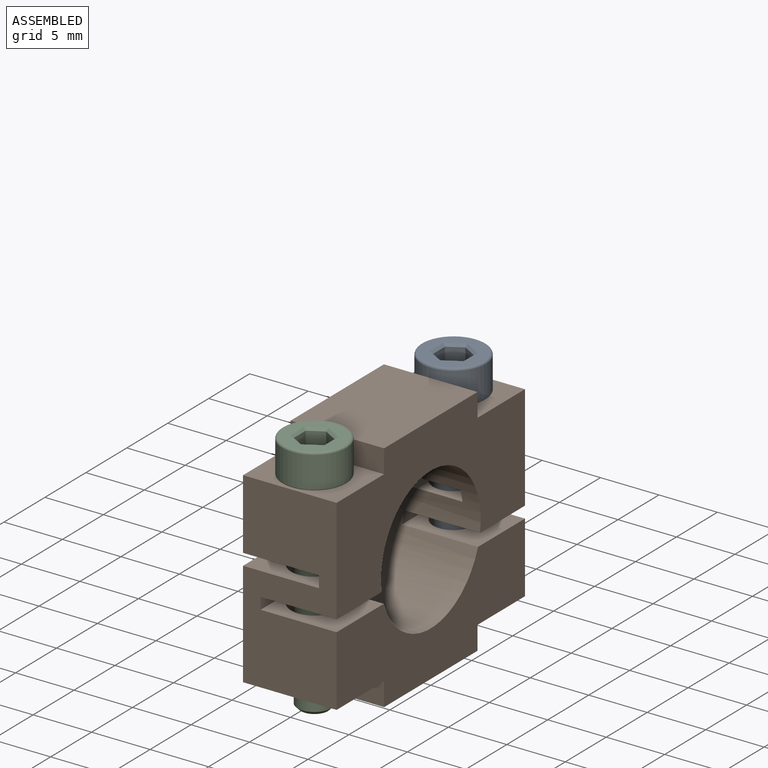
[diagram: assembled view]
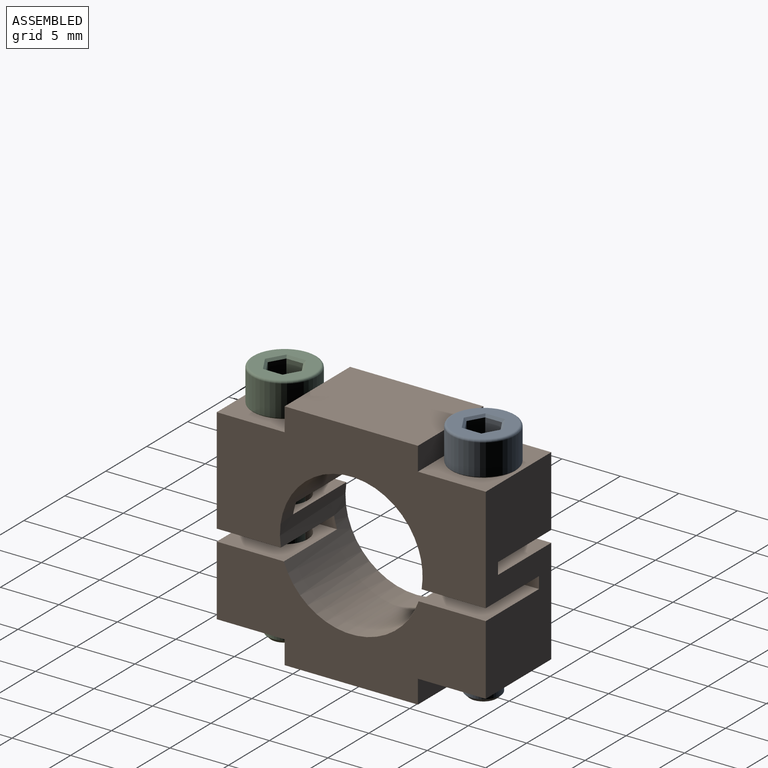
[diagram: assembled view, second angle]
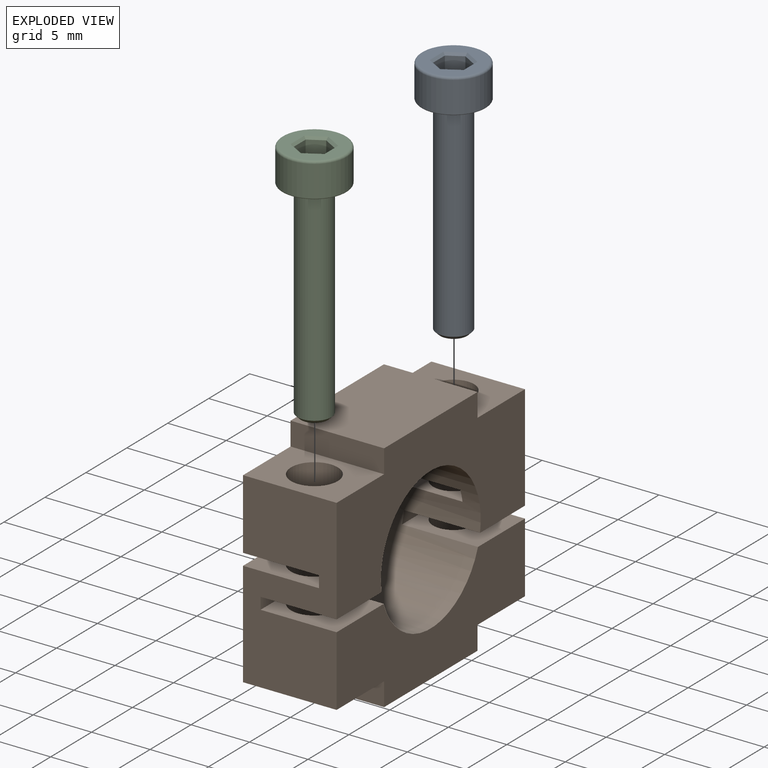
[diagram: exploded view]
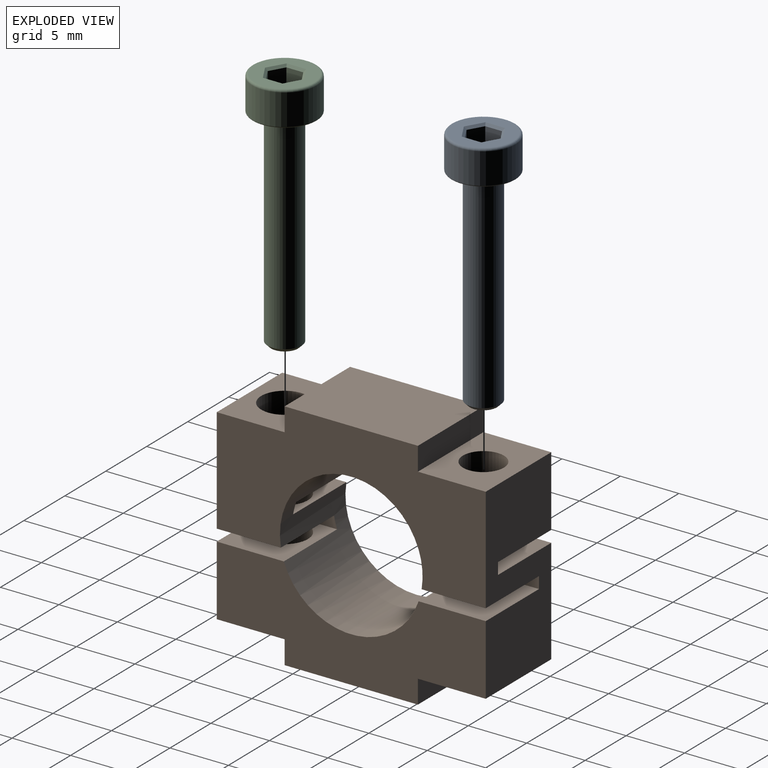
[diagram: exploded view, second angle]
ASSEMBLY  parts=3 mates=2
PART A: 23 faces, bbox 6x21x6 mm
  f0: plane 5.1x5.1mm, normal (0,1,0), area 13.1mm2, adj f10,f11,f12,f13,f14,f15,f17
  f1: cylinder r=2.75mm len=5.5mm, axis (0,-1,0), area 45.8mm2, adj f16,f17
  f2: plane 5.3x5.3mm, normal (0,-1,0), area 15mm2, adj f16,f18
  f3: plane 1.8x1.25mm, normal (0.5,0,-0.87), area 2.6mm2, adj f4,f8,f9,f15
  f4: plane 1.8x1.25mm, normal (-0.5,0,-0.87), area 2.6mm2, adj f3,f5,f9,f13
  f5: plane 1.8x1.44mm, normal (-1,0,0), area 2.6mm2, adj f4,f6,f9,f11
  f6: plane 1.8x1.25mm, normal (-0.5,0,0.87), area 2.6mm2, adj f5,f7,f9,f10
  f7: plane 1.8x1.25mm, normal (0.5,0,0.87), area 2.6mm2, adj f6,f8,f9,f12
  f8: plane 1.8x1.44mm, normal (1,0,0), area 2.6mm2, adj f3,f7,f9,f14
  f9: plane 2.89x2.5mm, normal (0,1,0), area 5.4mm2, adj f3,f4,f5,f6,f7,f8
  f10: plane 1.45x0.95mm, normal (-0.35,0.71,0.61), area 0.4mm2, adj f0,f6,f11,f12
  f11: plane 1.67x0.2mm, normal (-0.71,0.71,0), area 0.4mm2, adj f0,f5,f10,f13
  f12: plane 1.45x0.95mm, normal (0.35,0.71,0.61), area 0.4mm2, adj f0,f7,f10,f14
  f13: plane 1.45x0.95mm, normal (-0.35,0.71,-0.61), area 0.4mm2, adj f0,f4,f11,f15
  f14: plane 1.67x0.2mm, normal (0.71,0.71,0), area 0.4mm2, adj f0,f8,f12,f15
  f15: plane 1.45x0.95mm, normal (0.35,0.71,-0.61), area 0.4mm2, adj f0,f3,f13,f14
  f16: torus R=2.65mm, axis (0,-1,0), area 2.7mm2, adj f1,f2
  f17: torus R=2.55mm, axis (0,-1,0), area 5.3mm2, adj f0,f1
  f18: cylinder r=1.5mm len=3mm, axis (0,1,0), area 0.9mm2, adj f2,f19
  f19: plane 3x3mm, normal (0,-1,0), area 0.5mm2, adj f18,f22
  f20: plane 2.3x2.3mm, normal (0,-1,0), area 4.2mm2, adj f21
  f21: cone r=1.15mm half-angle=45deg, axis (0,1,0), area 3.5mm2, adj f20,f22
  f22: cylinder r=1.45mm len=17.6mm, axis (0,1,0), area 160.3mm2, adj f19,f21
PART B: 35 faces, bbox 8x23x20 mm
  f0: plane 11.4x8mm, normal (0,0,-1), area 91.2mm2, adj f4,f5,f28,f30
  f1: plane 11.4x8mm, normal (0,0,1), area 91.2mm2, adj f6,f7,f32,f34
  f2: plane 16x8mm, normal (0,-1,0), area 115mm2, adj f4,f5,f6,f7,f10,f11,f14,f15
  f3: plane 16x8mm, normal (0,1,0), area 115mm2, adj f4,f5,f6,f7,f12,f13,f17,f18
  f4: plane 23x11mm, normal (-1,0,0), area 159.2mm2, adj f0,f2,f3,f11,f12,f26,f27,f28
  f5: plane 23x8mm, normal (1,0,0), area 126.3mm2, adj f0,f2,f3,f13,f14,f26,f27,f28
  f6: plane 23x11mm, normal (1,0,0), area 159.2mm2, adj f1,f2,f3,f16,f17,f26,f31,f32
  f7: plane 23x8mm, normal (-1,0,0), area 126.3mm2, adj f1,f2,f3,f18,f19,f26,f31,f32
  f8: cylinder r=1.75mm len=6mm, axis (0,0,1), area 66mm2, adj f18,f31
  f9: cylinder r=2mm len=6mm, axis (0,0,1), area 75.2mm2, adj f14,f29
  f10: plane 5.74x1mm, normal (-1,0,0), area 5.6mm2, adj f2,f11,f19,f26
  f11: plane 6.5x5.48mm, normal (0,0,1), area 23.1mm2, adj f2,f4,f10,f23,f26
  f12: plane 6.5x5.48mm, normal (0,0,1), area 26mm2, adj f3,f4,f20,f24,f26
  f13: plane 6.5x5.74mm, normal (0,0,1), area 27.7mm2, adj f3,f5,f21,f25,f26
  f14: plane 6.5x5.74mm, normal (0,0,1), area 24.8mm2, adj f2,f5,f9,f15,f26
  f15: plane 5.74x1mm, normal (1,0,0), area 5.6mm2, adj f2,f14,f16,f26
  f16: plane 6.5x5.48mm, normal (0,0,-1), area 23.1mm2, adj f2,f6,f15,f23,f26
  f17: plane 6.5x5.48mm, normal (0,0,-1), area 26mm2, adj f3,f6,f21,f24,f26
  f18: plane 6.5x5.74mm, normal (0,0,-1), area 27.7mm2, adj f3,f7,f8,f20,f26
  f19: plane 6.5x5.74mm, normal (0,0,-1), area 24.8mm2, adj f2,f7,f10,f22,f26
  f20: plane 5.74x1mm, normal (-1,0,0), area 5.6mm2, adj f3,f12,f18,f26
  f21: plane 5.74x1mm, normal (1,0,0), area 5.6mm2, adj f3,f13,f17,f26
  f22: cylinder r=2mm len=6mm, axis (0,0,1), area 75.2mm2, adj f19,f33
  f23: cylinder r=2mm len=3.99mm, axis (0,0,1), area 25.1mm2, adj f11,f16
  f24: cylinder r=1.75mm len=3.5mm, axis (0,0,1), area 22mm2, adj f12,f17
  f25: cylinder r=1.75mm len=6mm, axis (0,0,1), area 66mm2, adj f13,f27
  f26: cylinder r=6.1mm len=12.2mm, axis (-1,0,0), area 279.8mm2, adj f4,f5,f6,f7,f10,f11,f12,f13
  f27: plane 8x5.8mm, normal (0,0,-1), area 36.8mm2, adj f3,f4,f5,f25,f28
  f28: plane 8x2mm, normal (0,1,0), area 16mm2, adj f0,f4,f5,f27
  f29: plane 8x5.8mm, normal (0,0,-1), area 33.9mm2, adj f2,f4,f5,f9,f30
  f30: plane 8x2mm, normal (0,-1,0), area 16mm2, adj f0,f4,f5,f29
  f31: plane 8x5.8mm, normal (0,0,1), area 36.8mm2, adj f3,f6,f7,f8,f32
  f32: plane 8x2mm, normal (0,1,0), area 16mm2, adj f1,f6,f7,f31
  f33: plane 8x5.8mm, normal (0,0,1), area 33.9mm2, adj f2,f6,f7,f22,f34
  f34: plane 8x2mm, normal (0,-1,0), area 16mm2, adj f1,f6,f7,f33
PART C: same geometry as A
PLACE A rot(axis=(1,0,0),90deg) t=(-52,8.5,8)mm
PLACE B t=(-4,0,0)mm
PLACE C rot(axis=(1,0,0),90deg) t=(-52,-8.5,8)mm
MATE fastened C.f1 <-> B.f9  axis (0,0,1) through (-4,-8.5,8)mm
MATE fastened A.f1 <-> B.f8  axis (0,0,1) through (-4,8.5,8)mm
